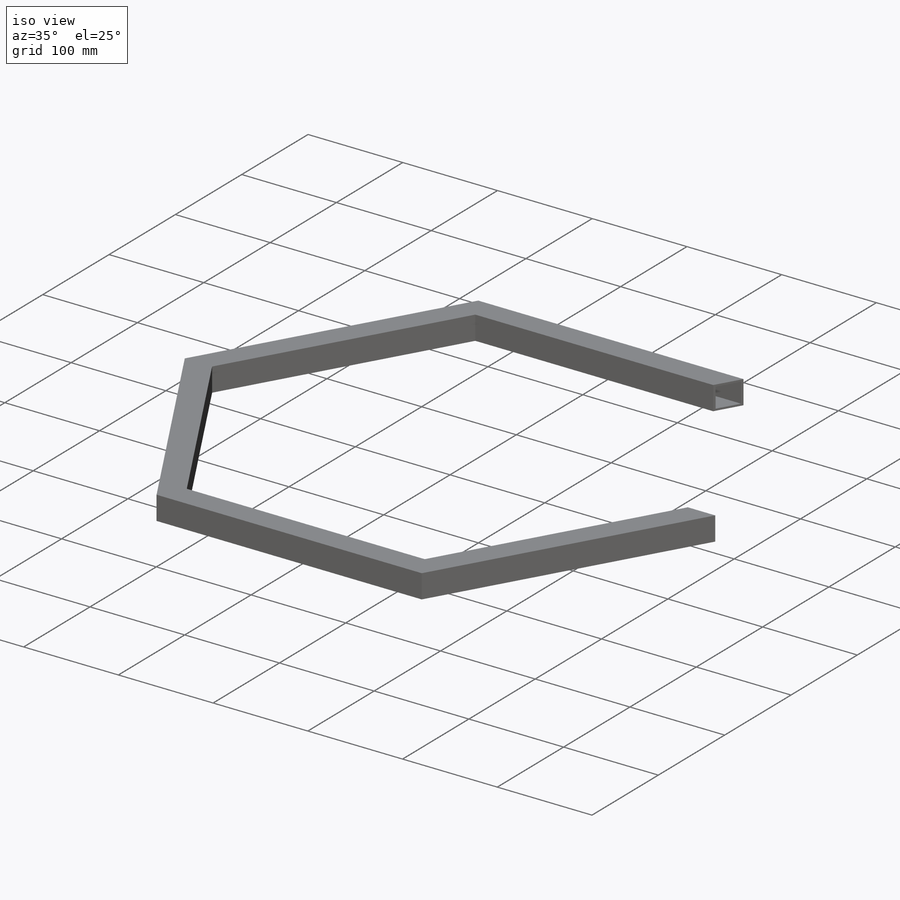
[diagram: iso view]
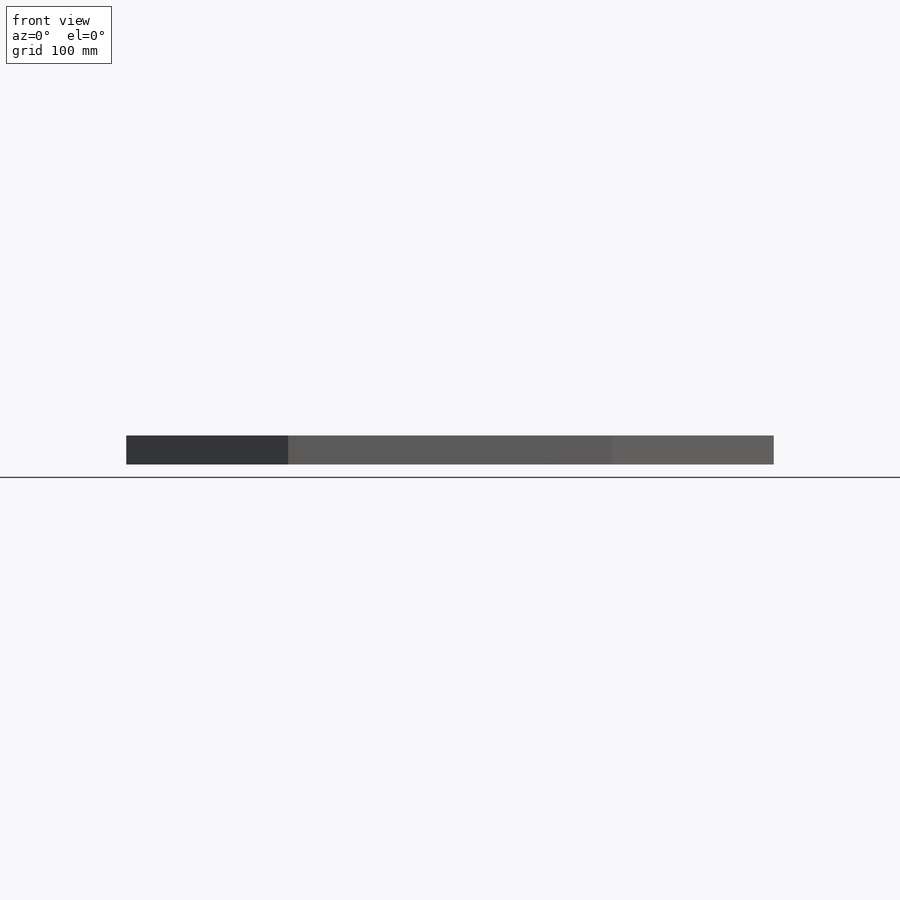
[diagram: front view]
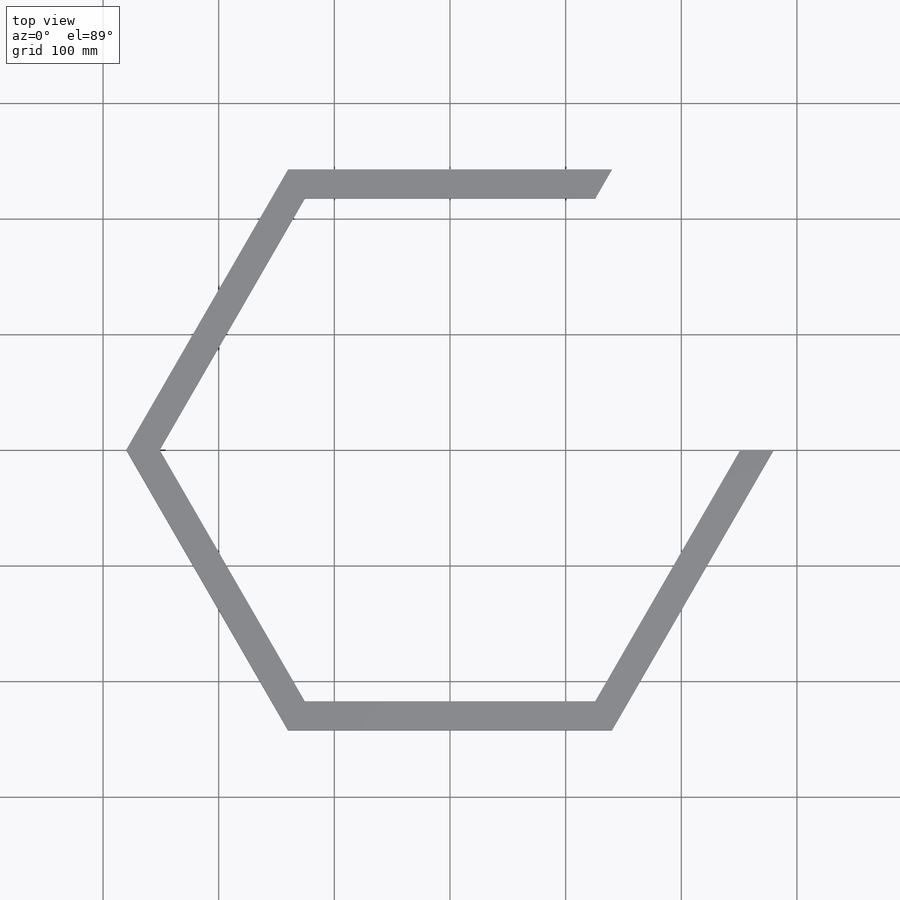
[diagram: top view]
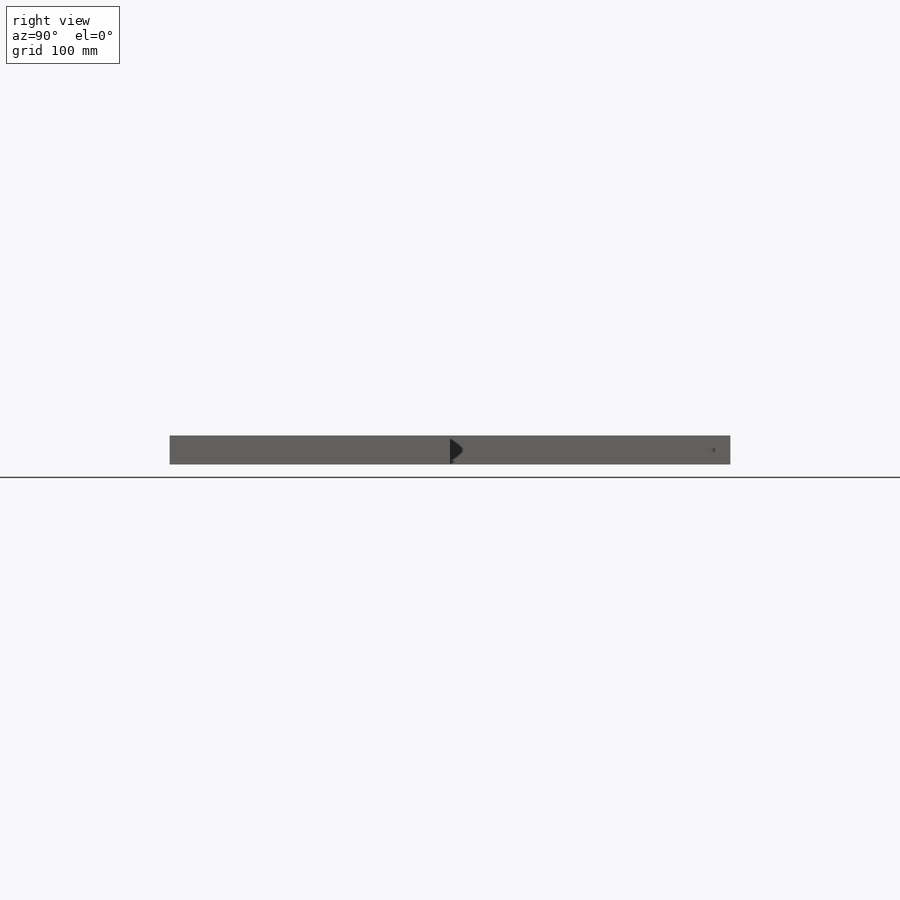
[diagram: right view]
SOLIDWORKS PART (.sldprt)
format: sldprt  version: not decoded by parser v0  size: 377,856 bytes
history: native  units: mm
features: sketch x14, cut_extrude x8, extrude x5, material x1, shell x1 (+13 scaffold rows collapsed)
feature tree (42):
  scaffold x13  (default folders/planes/origin — collapsed)
  material  "Material <not specified>"
  sketch  "Sketch1"  dims[D1=280.0mm D2=25.0mm]
  extrude  "Boss-Extrude1"  Depth=25mm
  shell  "Shell1"  Thickness=2mm
  sketch  "Sketch3"  dims[D3=10.0mm D1=12.5mm D2=175.0mm]
  sketch  "Sketch4"  dims[D1=10.0mm D2=12.5mm]
  cut_extrude  "Cut-Extrude2"  Depth=40mm
  sketch  "Sketch5"  dims[D1=100.0mm D2=70.0mm D3=50.0mm D4=125.0mm]
  extrude  "Boss-Extrude2"  Depth=3mm
  sketch  "Sketch6"
  cut_extrude  "Cut-Extrude3"  Depth=53mm
  sketch  "Sketch7"  dims[D1=44.0mm D2=65.0mm]
  extrude  "Boss-Extrude3"  Depth=3mm
  sketch  "Sketch8"  dims[D1=33.0mm D2=105.0mm]
  cut_extrude  "Cut-Extrude4"  Depth=3mm
  sketch  "Sketch9"
  extrude  "Boss-Extrude4"  Depth=3mm
  sketch  "Sketch10"
  cut_extrude  "Cut-Extrude5"  Depth=3mm
  sketch  "Sketch11"
  cut_extrude  "Cut-Extrude6"  Depth=3mm
  sketch  "Sketch12"
  cut_extrude  "Cut-Extrude7"  Depth=3mm
  sketch  "Sketch13"
  extrude  "Boss-Extrude5"  Depth=3mm
  sketch  "Sketch14"
  cut_extrude  "Cut-Extrude8"  Depth=23mm
  sketch  "Sketch15"
  cut_extrude  "Cut-Extrude10"  Depth=23mm
decode coverage: 20 of 28 modeling features carry decoded parameters
note: suppression state not decoded; provenance and decode notes live in map.json
